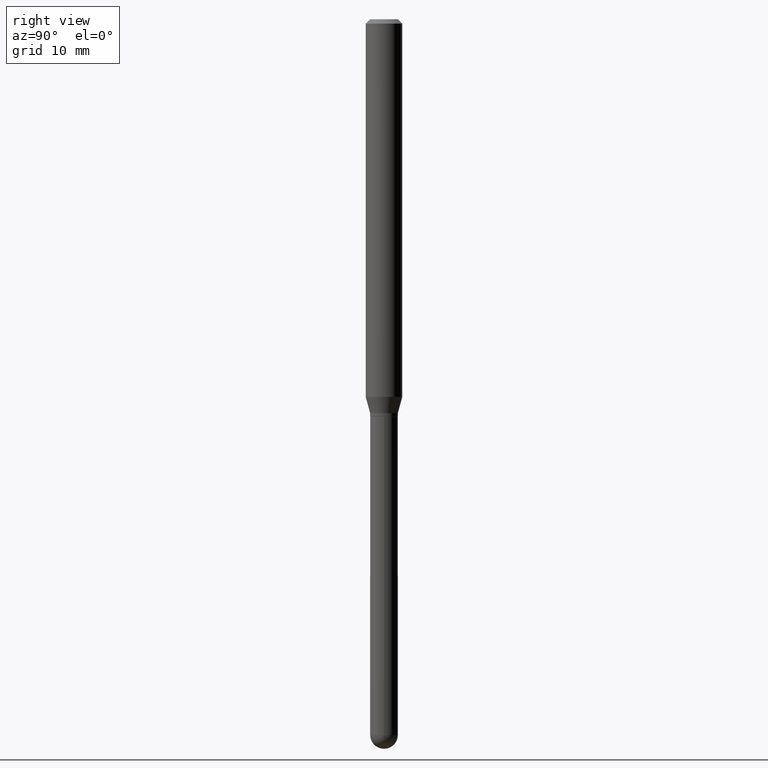
[diagram: clean part render]
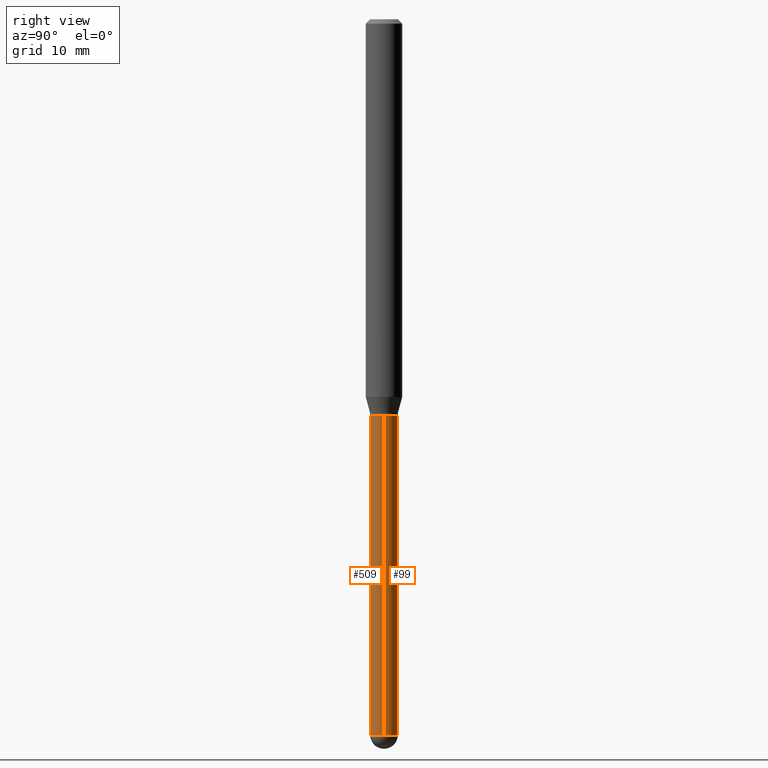
[diagram: same view with one multi-face feature highlighted, each face labeled with its STEP entity id]
A machine part, right view. The highlighted faces form ONE feature: a constant-radius fillet chain: 2 tangent blend faces with common blend radius 1.2065 mm. The faces share edges in the B-rep.
Their STEP definitions:
[1] entity #509 (Cylinder):
#5 = ORIENTED_EDGE ( 'NONE', *, *, #74, .F. ) ;
#6 = DIRECTION ( 'NONE',  ( -2.445468806185136597E-29, 3.491481338843145583E-15, 1.000000000000000000 ) ) ;
#7 = CARTESIAN_POINT ( 'NONE',  ( -0.04750000000000000749, 3.375077994860476415E-16, -2.336494167871080260E-30 ) ) ;
#13 = FACE_OUTER_BOUND ( 'NONE', #165, .T. ) ;
#30 = DIRECTION ( 'NONE',  ( 1.000000000000000000, -6.982962677686280910E-15, 0.000000000000000000 ) ) ;
#33 = VERTEX_POINT ( 'NONE', #119 ) ;
#44 = CARTESIAN_POINT ( 'NONE',  ( 0.04750000000000000749, -3.316907271900977082E-16, 2.316183968503069432E-30 ) ) ;
#47 = CARTESIAN_POINT ( 'NONE',  ( 0.000000000000000000, 0.000000000000000000, 0.000000000000000000 ) ) ;
#50 = AXIS2_PLACEMENT_3D ( 'NONE', #101, #62, #67 ) ;
#62 = DIRECTION ( 'NONE',  ( -2.445468806185136597E-29, 3.491481338843145583E-15, 1.000000000000000000 ) ) ;
#64 = CIRCLE ( 'NONE', #490, 0.04749999999999999362 ) ;
#67 = DIRECTION ( 'NONE',  ( 1.000000000000000000, -6.982962677686280910E-15, 0.000000000000000000 ) ) ;
#74 = EDGE_CURVE ( 'NONE', #347, #78, #356, .T. ) ;
#78 = VERTEX_POINT ( 'NONE', #289 ) ;
#85 = VECTOR ( 'NONE', #113, 39.37007874015748143 ) ;
#89 = VERTEX_POINT ( 'NONE', #448 ) ;
#101 = CARTESIAN_POINT ( 'NONE',  ( 5.997512247169047773E-29, -8.562857983512815004E-15, -2.452500000000000124 ) ) ;
#111 = CIRCLE ( 'NONE', #50, 0.04750000000000000749 ) ;
#113 = DIRECTION ( 'NONE',  ( -2.445468806185136877E-29, 3.491481338843145188E-15, 1.000000000000000000 ) ) ;
#118 = ORIENTED_EDGE ( 'NONE', *, *, #418, .F. ) ;
#119 = CARTESIAN_POINT ( 'NONE',  ( 0.04749999999999999362, -5.080105348016776545E-15, -1.360000000000000320 ) ) ;
#135 = DIRECTION ( 'NONE',  ( 1.000000000000000000, -6.982962677686261977E-15, 0.000000000000000000 ) ) ;
#137 = DIRECTION ( 'NONE',  ( -2.445468806185136877E-29, 3.491481338843145188E-15, 1.000000000000000000 ) ) ;
#154 = ORIENTED_EDGE ( 'NONE', *, *, #300, .T. ) ;
#159 = AXIS2_PLACEMENT_3D ( 'NONE', #426, #263, #30 ) ;
#165 = EDGE_LOOP ( 'NONE', ( #5, #307, #387, #154, #118 ) ) ;
#171 = CYLINDRICAL_SURFACE ( 'NONE', #176, 0.04750000000000000749 ) ;
#176 = AXIS2_PLACEMENT_3D ( 'NONE', #47, #288, #438 ) ;
#187 = CARTESIAN_POINT ( 'NONE',  ( -3.375077994859866034E-16, -0.04750000000000842437, -2.452499999999999680 ) ) ;
#199 = EDGE_CURVE ( 'NONE', #347, #396, #111, .T. ) ;
#215 = VECTOR ( 'NONE', #137, 39.37007874015748143 ) ;
#263 = DIRECTION ( 'NONE',  ( -2.445468806185136597E-29, 3.491481338843145583E-15, 1.000000000000000000 ) ) ;
#288 = DIRECTION ( 'NONE',  ( -2.445468806185136597E-29, 3.491481338843145583E-15, 1.000000000000000000 ) ) ;
#289 = CARTESIAN_POINT ( 'NONE',  ( -0.04749999999999999362, -6.318128502683699525E-15, -1.360000000000000320 ) ) ;
#300 = EDGE_CURVE ( 'NONE', #89, #33, #460, .T. ) ;
#307 = ORIENTED_EDGE ( 'NONE', *, *, #199, .T. ) ;
#336 = CARTESIAN_POINT ( 'NONE',  ( -0.04750000000000000749, -6.318128502683699525E-15, -2.452500000000000124 ) ) ;
#347 = VERTEX_POINT ( 'NONE', #336 ) ;
#352 = EDGE_CURVE ( 'NONE', #396, #89, #421, .T. ) ;
#356 = LINE ( 'NONE', #7, #215 ) ;
#387 = ORIENTED_EDGE ( 'NONE', *, *, #352, .T. ) ;
#396 = VERTEX_POINT ( 'NONE', #187 ) ;
#401 = CARTESIAN_POINT ( 'NONE',  ( 3.325837576411786624E-29, -4.748414620826679034E-15, -1.360000000000000320 ) ) ;
#418 = EDGE_CURVE ( 'NONE', #78, #33, #64, .T. ) ;
#421 = CIRCLE ( 'NONE', #159, 0.04750000000000000749 ) ;
#426 = CARTESIAN_POINT ( 'NONE',  ( 5.997512247169047773E-29, -8.562857983512815004E-15, -2.452500000000000124 ) ) ;
#438 = DIRECTION ( 'NONE',  ( 1.000000000000000000, -6.982962677686266711E-15, 4.876176775795934672E-29 ) ) ;
#448 = CARTESIAN_POINT ( 'NONE',  ( 0.04750000000000000749, -6.987327029359844530E-15, -2.452500000000000124 ) ) ;
#460 = LINE ( 'NONE', #44, #85 ) ;
#490 = AXIS2_PLACEMENT_3D ( 'NONE', #401, #6, #135 ) ;
#509 = ADVANCED_FACE ( 'NONE', ( #13 ), #171, .T. ) ;
[2] entity #99 (Cylinder):
#7 = CARTESIAN_POINT ( 'NONE',  ( -0.04750000000000000749, 3.375077994860476415E-16, -2.336494167871080260E-30 ) ) ;
#14 = DIRECTION ( 'NONE',  ( 1.000000000000000000, -6.982962677686280910E-15, 0.000000000000000000 ) ) ;
#24 = DIRECTION ( 'NONE',  ( -2.445468806185136597E-29, 3.491481338843145583E-15, 1.000000000000000000 ) ) ;
#33 = VERTEX_POINT ( 'NONE', #119 ) ;
#40 = CIRCLE ( 'NONE', #260, 0.04749999999999999362 ) ;
#44 = CARTESIAN_POINT ( 'NONE',  ( 0.04750000000000000749, -3.316907271900977082E-16, 2.316183968503069432E-30 ) ) ;
#52 = CIRCLE ( 'NONE', #488, 0.04750000000000000749 ) ;
#59 = DIRECTION ( 'NONE',  ( 1.000000000000000000, -6.982962677686266711E-15, 4.876176775795934672E-29 ) ) ;
#74 = EDGE_CURVE ( 'NONE', #347, #78, #356, .T. ) ;
#78 = VERTEX_POINT ( 'NONE', #289 ) ;
#79 = CIRCLE ( 'NONE', #302, 0.04750000000000000749 ) ;
#85 = VECTOR ( 'NONE', #113, 39.37007874015748143 ) ;
#89 = VERTEX_POINT ( 'NONE', #448 ) ;
#99 = ADVANCED_FACE ( 'NONE', ( #248 ), #499, .T. ) ;
#113 = DIRECTION ( 'NONE',  ( -2.445468806185136877E-29, 3.491481338843145188E-15, 1.000000000000000000 ) ) ;
#114 = ORIENTED_EDGE ( 'NONE', *, *, #291, .T. ) ;
#119 = CARTESIAN_POINT ( 'NONE',  ( 0.04749999999999999362, -5.080105348016776545E-15, -1.360000000000000320 ) ) ;
#133 = DIRECTION ( 'NONE',  ( -2.445468806185136597E-29, 3.491481338843145583E-15, 1.000000000000000000 ) ) ;
#137 = DIRECTION ( 'NONE',  ( -2.445468806185136877E-29, 3.491481338843145188E-15, 1.000000000000000000 ) ) ;
#139 = EDGE_CURVE ( 'NONE', #33, #78, #40, .T. ) ;
#149 = DIRECTION ( 'NONE',  ( 1.000000000000000000, -6.982962677686280910E-15, 0.000000000000000000 ) ) ;
#170 = ORIENTED_EDGE ( 'NONE', *, *, #300, .F. ) ;
#178 = EDGE_CURVE ( 'NONE', #345, #347, #52, .T. ) ;
#215 = VECTOR ( 'NONE', #137, 39.37007874015748143 ) ;
#225 = ORIENTED_EDGE ( 'NONE', *, *, #139, .F. ) ;
#248 = FACE_OUTER_BOUND ( 'NONE', #264, .T. ) ;
#250 = CARTESIAN_POINT ( 'NONE',  ( 0.000000000000000000, 0.000000000000000000, 0.000000000000000000 ) ) ;
#260 = AXIS2_PLACEMENT_3D ( 'NONE', #294, #133, #408 ) ;
#264 = EDGE_LOOP ( 'NONE', ( #390, #267, #225, #170, #114 ) ) ;
#266 = CARTESIAN_POINT ( 'NONE',  ( 3.316907271901566262E-16, 0.04749999999999129918, -2.452500000000000568 ) ) ;
#267 = ORIENTED_EDGE ( 'NONE', *, *, #74, .T. ) ;
#289 = CARTESIAN_POINT ( 'NONE',  ( -0.04749999999999999362, -6.318128502683699525E-15, -1.360000000000000320 ) ) ;
#291 = EDGE_CURVE ( 'NONE', #89, #345, #79, .T. ) ;
#294 = CARTESIAN_POINT ( 'NONE',  ( 3.325837576411786624E-29, -4.748414620826679034E-15, -1.360000000000000320 ) ) ;
#300 = EDGE_CURVE ( 'NONE', #89, #33, #460, .T. ) ;
#302 = AXIS2_PLACEMENT_3D ( 'NONE', #422, #467, #149 ) ;
#324 = DIRECTION ( 'NONE',  ( -2.445468806185136597E-29, 3.491481338843145583E-15, 1.000000000000000000 ) ) ;
#336 = CARTESIAN_POINT ( 'NONE',  ( -0.04750000000000000749, -6.318128502683699525E-15, -2.452500000000000124 ) ) ;
#345 = VERTEX_POINT ( 'NONE', #266 ) ;
#347 = VERTEX_POINT ( 'NONE', #336 ) ;
#356 = LINE ( 'NONE', #7, #215 ) ;
#390 = ORIENTED_EDGE ( 'NONE', *, *, #178, .T. ) ;
#408 = DIRECTION ( 'NONE',  ( 1.000000000000000000, -6.982962677686261977E-15, 0.000000000000000000 ) ) ;
#422 = CARTESIAN_POINT ( 'NONE',  ( 5.997512247169047773E-29, -8.562857983512815004E-15, -2.452500000000000124 ) ) ;
#448 = CARTESIAN_POINT ( 'NONE',  ( 0.04750000000000000749, -6.987327029359844530E-15, -2.452500000000000124 ) ) ;
#460 = LINE ( 'NONE', #44, #85 ) ;
#467 = DIRECTION ( 'NONE',  ( -2.445468806185136597E-29, 3.491481338843145583E-15, 1.000000000000000000 ) ) ;
#469 = AXIS2_PLACEMENT_3D ( 'NONE', #250, #24, #59 ) ;
#487 = CARTESIAN_POINT ( 'NONE',  ( 5.997512247169047773E-29, -8.562857983512815004E-15, -2.452500000000000124 ) ) ;
#488 = AXIS2_PLACEMENT_3D ( 'NONE', #487, #324, #14 ) ;
#499 = CYLINDRICAL_SURFACE ( 'NONE', #469, 0.04750000000000000749 ) ;